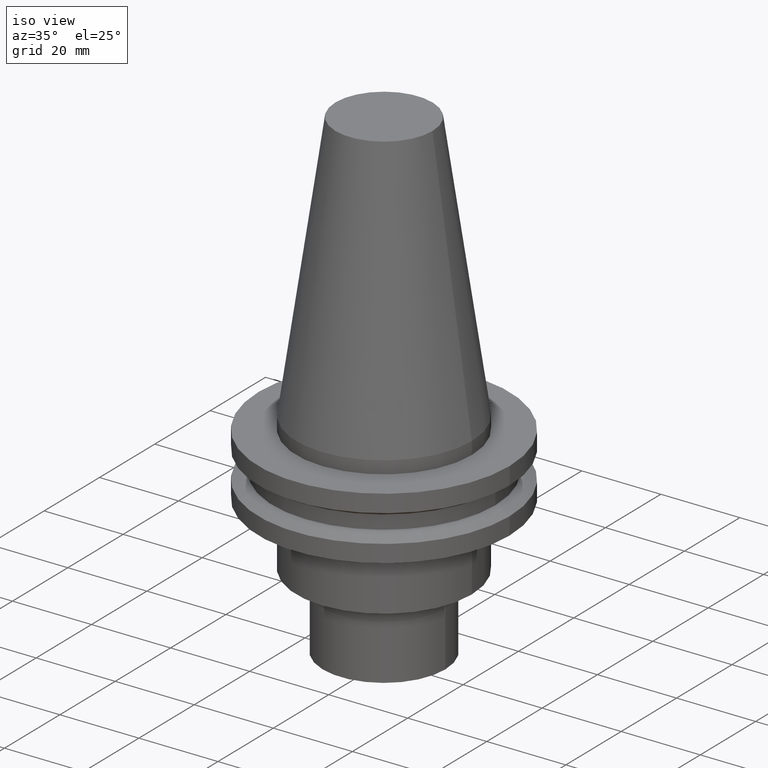
[diagram: clean part render]
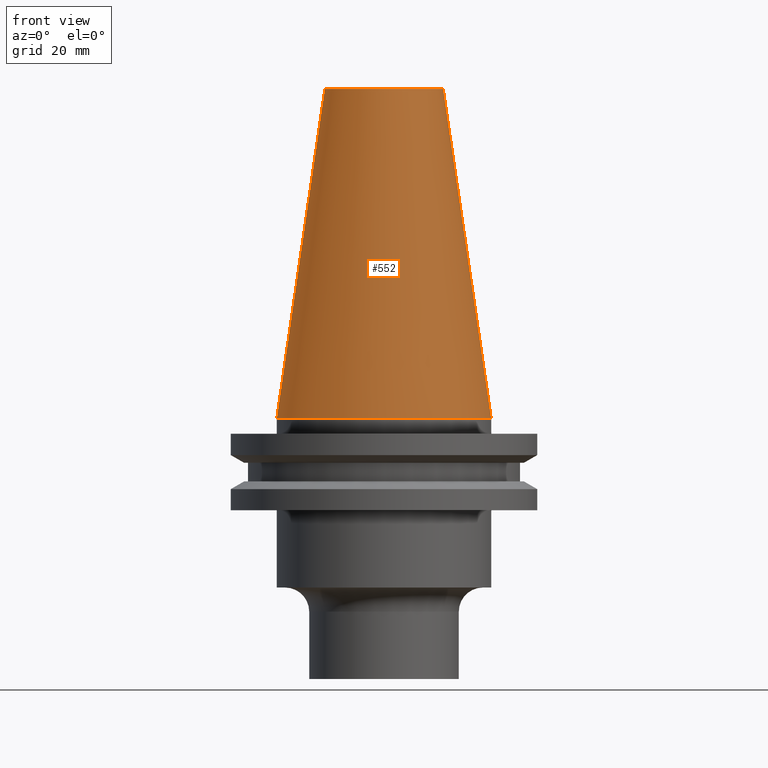
[diagram: tour spotlight — one face highlighted and labeled with its STEP entity id]
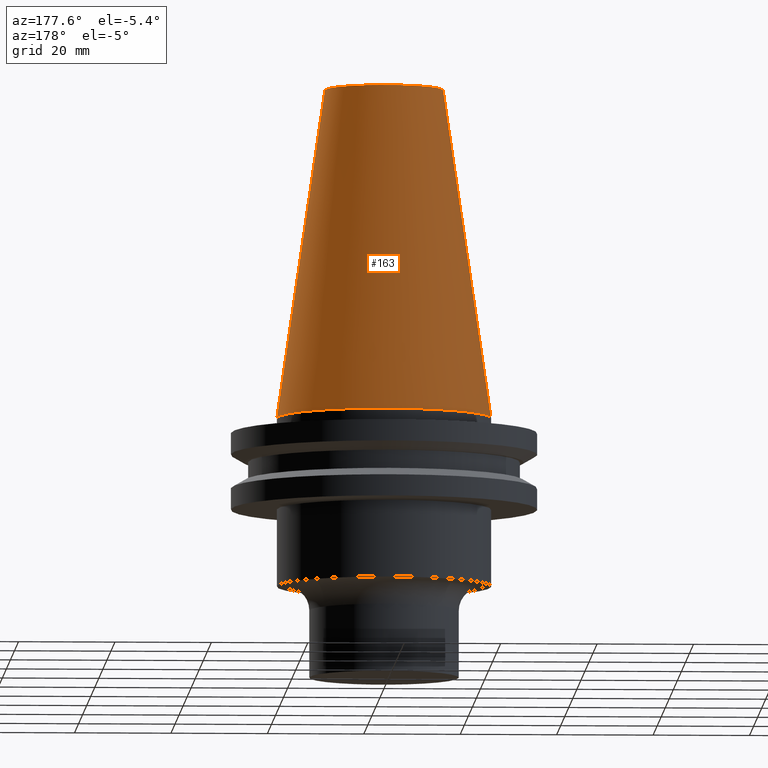
[diagram: tour spotlight — one face highlighted and labeled with its STEP entity id]
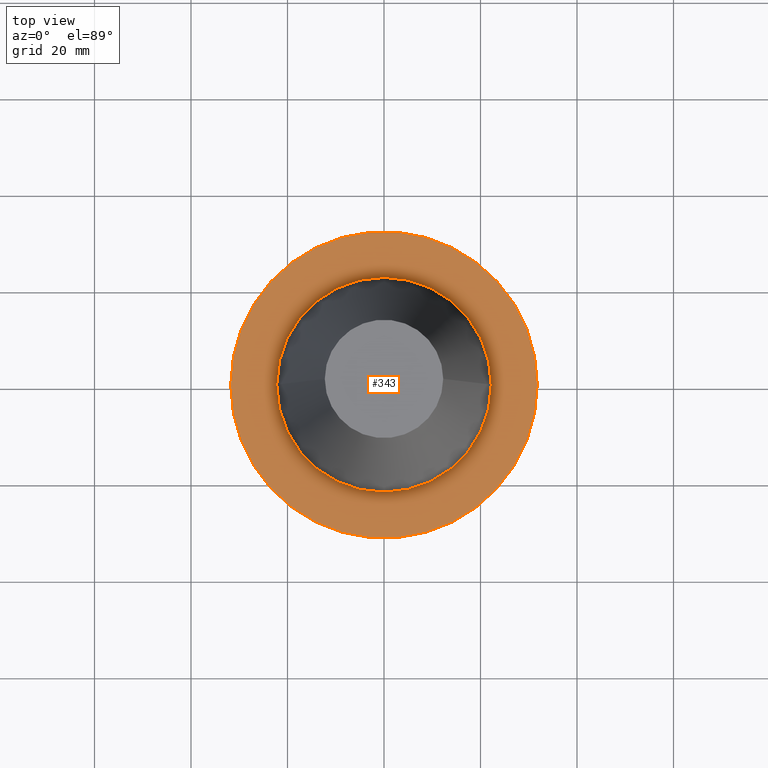
[diagram: tour spotlight — one face highlighted and labeled with its STEP entity id]
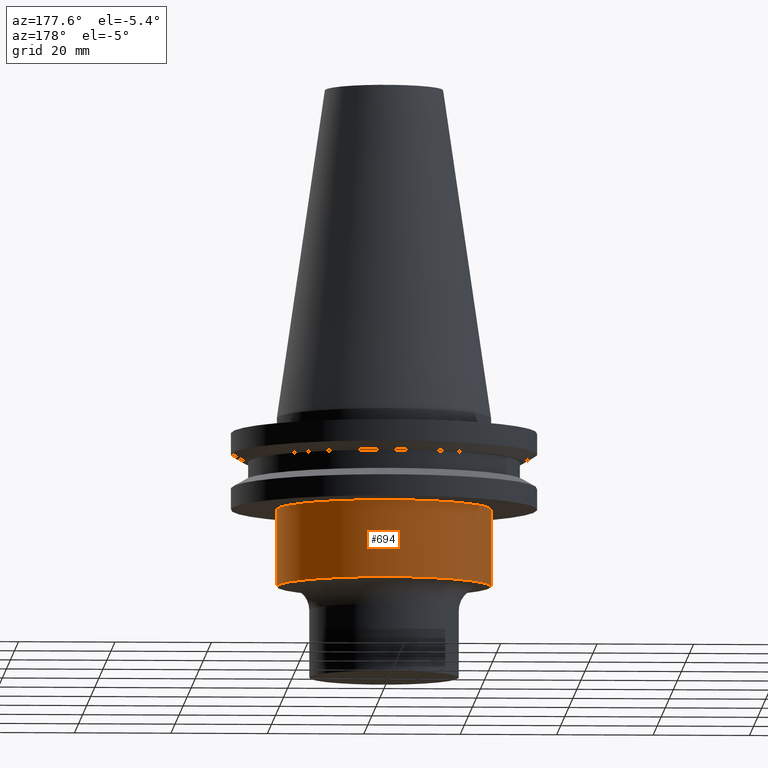
[diagram: tour spotlight — one face highlighted and labeled with its STEP entity id]
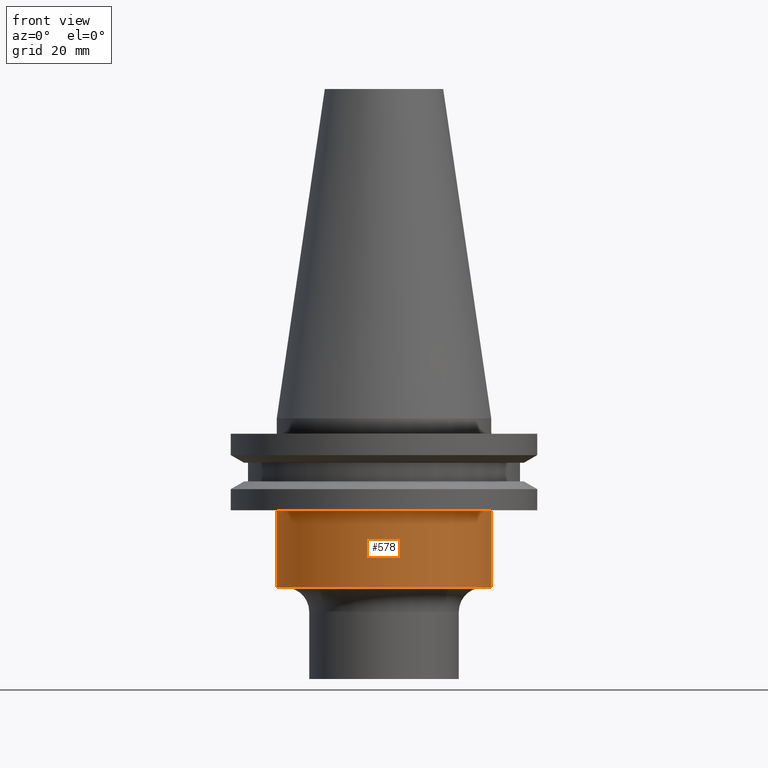
[diagram: tour spotlight — one face highlighted and labeled with its STEP entity id]
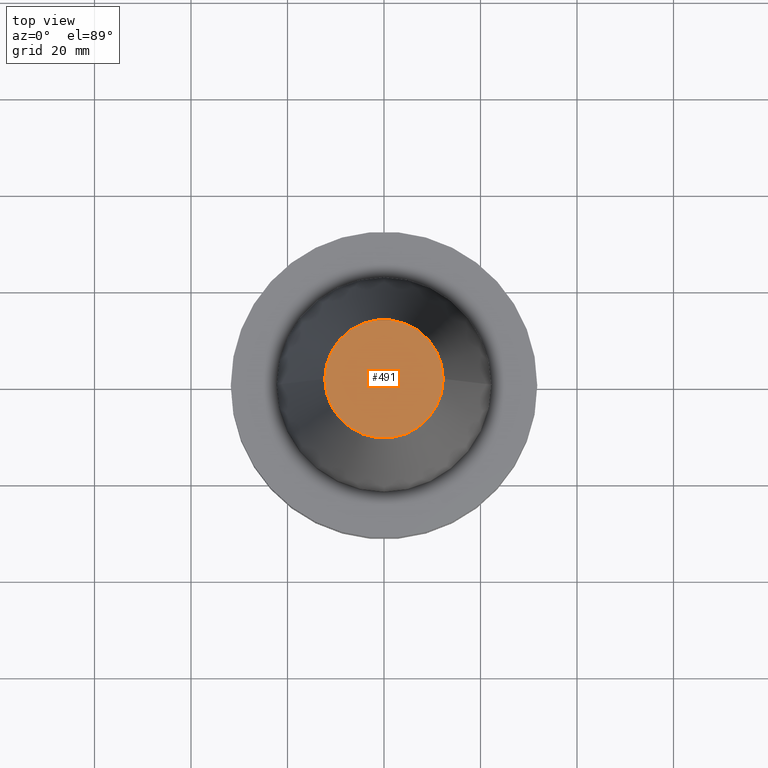
[diagram: tour spotlight — one face highlighted and labeled with its STEP entity id]
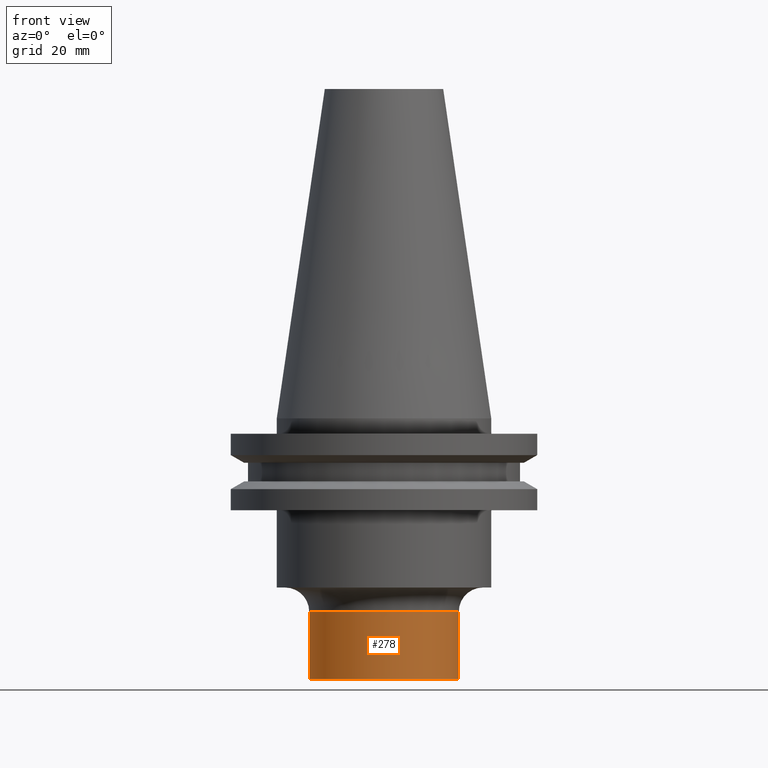
[diagram: tour spotlight — one face highlighted and labeled with its STEP entity id]
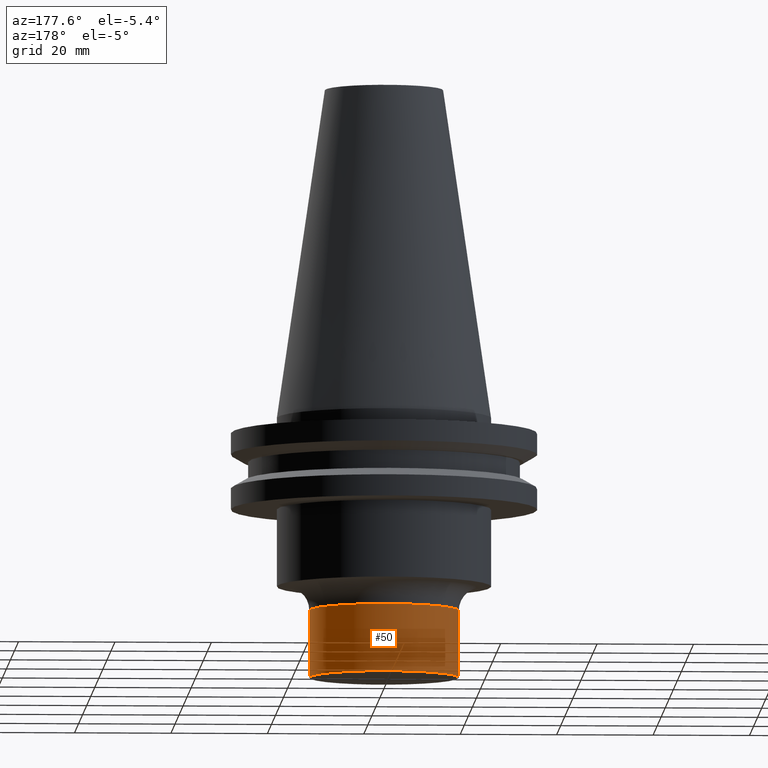
[diagram: tour spotlight — one face highlighted and labeled with its STEP entity id]
A machine part: a face-by-face anatomy tour. The part has 27 B-rep faces; the first image is the clean iso view, then the 8 largest visible faces are spotlighted one at a time (largest first), each with its STEP entity span.

Face 1 — front view, entity #552. In plain terms, the highlighted conical surface has half-angle 8.297 deg.
Definition (entity closure, byte-faithful):
#3 = CARTESIAN_POINT ( 'NONE',  ( 22.22500000000000142, 2.721777511104992849E-15, 0.000000000000000000 ) ) ;
#5 = VECTOR ( 'NONE', #271, 999.9999999999998863 ) ;
#72 = DIRECTION ( 'NONE',  ( -0.000000000000000000, -0.000000000000000000, 1.000000000000000000 ) ) ;
#78 = CARTESIAN_POINT ( 'NONE',  ( 0.000000000000000000, 0.000000000000000000, 0.000000000000000000 ) ) ;
#86 = DIRECTION ( 'NONE',  ( 0.1443082272672999711, 1.767266086135276757E-17, -0.9895327864921755756 ) ) ;
#126 = EDGE_CURVE ( 'NONE', #129, #236, #276, .T. ) ;
#129 = VERTEX_POINT ( 'NONE', #392 ) ;
#132 = VERTEX_POINT ( 'NONE', #340 ) ;
#145 = LINE ( 'NONE', #327, #5 ) ;
#154 = CONICAL_SURFACE ( 'NONE', #205, 22.22500000000000142, 0.1448138465474119174 ) ;
#205 = AXIS2_PLACEMENT_3D ( 'NONE', #78, #498, #736 ) ;
#215 = CARTESIAN_POINT ( 'NONE',  ( 12.27178102086201150, 2.112318622904291439E-15, 68.25000000000000000 ) ) ;
#221 = EDGE_CURVE ( 'NONE', #132, #682, #302, .T. ) ;
#236 = VERTEX_POINT ( 'NONE', #3 ) ;
#247 = ORIENTED_EDGE ( 'NONE', *, *, #126, .T. ) ;
#271 = DIRECTION ( 'NONE',  ( -0.1443082272672999711, 0.000000000000000000, -0.9895327864921755756 ) ) ;
#276 = CIRCLE ( 'NONE', #374, 22.22500000000000142 ) ;
#302 = CIRCLE ( 'NONE', #621, 12.27178102086201150 ) ;
#325 = ORIENTED_EDGE ( 'NONE', *, *, #499, .T. ) ;
#327 = CARTESIAN_POINT ( 'NONE',  ( -22.22500000000000142, 0.000000000000000000, 0.000000000000000000 ) ) ;
#337 = VECTOR ( 'NONE', #86, 999.9999999999998863 ) ;
#340 = CARTESIAN_POINT ( 'NONE',  ( -12.27178102086201150, 0.000000000000000000, 68.25000000000000000 ) ) ;
#374 = AXIS2_PLACEMENT_3D ( 'NONE', #771, #408, #519 ) ;
#392 = CARTESIAN_POINT ( 'NONE',  ( -22.22500000000000142, 0.000000000000000000, 0.000000000000000000 ) ) ;
#408 = DIRECTION ( 'NONE',  ( -0.000000000000000000, -0.000000000000000000, 1.000000000000000000 ) ) ;
#476 = EDGE_CURVE ( 'NONE', #682, #236, #496, .T. ) ;
#496 = LINE ( 'NONE', #627, #337 ) ;
#498 = DIRECTION ( 'NONE',  ( 0.000000000000000000, 0.000000000000000000, -1.000000000000000000 ) ) ;
#499 = EDGE_CURVE ( 'NONE', #132, #129, #145, .T. ) ;
#519 = DIRECTION ( 'NONE',  ( 1.000000000000000000, 0.000000000000000000, 0.000000000000000000 ) ) ;
#550 = DIRECTION ( 'NONE',  ( 1.000000000000000000, 0.000000000000000000, 0.000000000000000000 ) ) ;
#552 = ADVANCED_FACE ( 'NONE', ( #620 ), #154, .T. ) ;
#593 = EDGE_LOOP ( 'NONE', ( #725, #768, #325, #247 ) ) ;
#600 = CARTESIAN_POINT ( 'NONE',  ( 0.000000000000000000, 0.000000000000000000, 68.25000000000000000 ) ) ;
#620 = FACE_OUTER_BOUND ( 'NONE', #593, .T. ) ;
#621 = AXIS2_PLACEMENT_3D ( 'NONE', #600, #72, #550 ) ;
#627 = CARTESIAN_POINT ( 'NONE',  ( 22.22500000000000142, 2.721777511104992849E-15, 0.000000000000000000 ) ) ;
#682 = VERTEX_POINT ( 'NONE', #215 ) ;
#725 = ORIENTED_EDGE ( 'NONE', *, *, #476, .F. ) ;
#736 = DIRECTION ( 'NONE',  ( -1.000000000000000000, 0.000000000000000000, 0.000000000000000000 ) ) ;
#768 = ORIENTED_EDGE ( 'NONE', *, *, #221, .F. ) ;
#771 = CARTESIAN_POINT ( 'NONE',  ( 0.000000000000000000, 0.000000000000000000, 0.000000000000000000 ) ) ;

Face 2 — auxiliary view, entity #163. In plain terms, the highlighted conical surface has half-angle 8.297 deg.
Definition (entity closure, byte-faithful):
#3 = CARTESIAN_POINT ( 'NONE',  ( 22.22500000000000142, 2.721777511104992849E-15, 0.000000000000000000 ) ) ;
#5 = VECTOR ( 'NONE', #271, 999.9999999999998863 ) ;
#41 = CARTESIAN_POINT ( 'NONE',  ( 0.000000000000000000, 0.000000000000000000, 0.000000000000000000 ) ) ;
#63 = AXIS2_PLACEMENT_3D ( 'NONE', #659, #548, #490 ) ;
#86 = DIRECTION ( 'NONE',  ( 0.1443082272672999711, 1.767266086135276757E-17, -0.9895327864921755756 ) ) ;
#87 = CIRCLE ( 'NONE', #63, 22.22500000000000142 ) ;
#105 = DIRECTION ( 'NONE',  ( 0.000000000000000000, 0.000000000000000000, -1.000000000000000000 ) ) ;
#129 = VERTEX_POINT ( 'NONE', #392 ) ;
#132 = VERTEX_POINT ( 'NONE', #340 ) ;
#145 = LINE ( 'NONE', #327, #5 ) ;
#163 = ADVANCED_FACE ( 'NONE', ( #395 ), #277, .T. ) ;
#174 = ORIENTED_EDGE ( 'NONE', *, *, #499, .F. ) ;
#185 = ORIENTED_EDGE ( 'NONE', *, *, #476, .T. ) ;
#212 = DIRECTION ( 'NONE',  ( -0.000000000000000000, -0.000000000000000000, 1.000000000000000000 ) ) ;
#215 = CARTESIAN_POINT ( 'NONE',  ( 12.27178102086201150, 2.112318622904291439E-15, 68.25000000000000000 ) ) ;
#236 = VERTEX_POINT ( 'NONE', #3 ) ;
#271 = DIRECTION ( 'NONE',  ( -0.1443082272672999711, 0.000000000000000000, -0.9895327864921755756 ) ) ;
#277 = CONICAL_SURFACE ( 'NONE', #376, 22.22500000000000142, 0.1448138465474119174 ) ;
#318 = CARTESIAN_POINT ( 'NONE',  ( 0.000000000000000000, 0.000000000000000000, 68.25000000000000000 ) ) ;
#327 = CARTESIAN_POINT ( 'NONE',  ( -22.22500000000000142, 0.000000000000000000, 0.000000000000000000 ) ) ;
#337 = VECTOR ( 'NONE', #86, 999.9999999999998863 ) ;
#340 = CARTESIAN_POINT ( 'NONE',  ( -12.27178102086201150, 0.000000000000000000, 68.25000000000000000 ) ) ;
#344 = DIRECTION ( 'NONE',  ( -1.000000000000000000, 0.000000000000000000, 0.000000000000000000 ) ) ;
#362 = CIRCLE ( 'NONE', #554, 12.27178102086201150 ) ;
#376 = AXIS2_PLACEMENT_3D ( 'NONE', #41, #105, #344 ) ;
#392 = CARTESIAN_POINT ( 'NONE',  ( -22.22500000000000142, 0.000000000000000000, 0.000000000000000000 ) ) ;
#395 = FACE_OUTER_BOUND ( 'NONE', #455, .T. ) ;
#409 = EDGE_CURVE ( 'NONE', #682, #132, #362, .T. ) ;
#455 = EDGE_LOOP ( 'NONE', ( #534, #185, #544, #174 ) ) ;
#476 = EDGE_CURVE ( 'NONE', #682, #236, #496, .T. ) ;
#490 = DIRECTION ( 'NONE',  ( 1.000000000000000000, 0.000000000000000000, 0.000000000000000000 ) ) ;
#496 = LINE ( 'NONE', #627, #337 ) ;
#499 = EDGE_CURVE ( 'NONE', #132, #129, #145, .T. ) ;
#534 = ORIENTED_EDGE ( 'NONE', *, *, #409, .F. ) ;
#544 = ORIENTED_EDGE ( 'NONE', *, *, #708, .T. ) ;
#548 = DIRECTION ( 'NONE',  ( -0.000000000000000000, -0.000000000000000000, 1.000000000000000000 ) ) ;
#554 = AXIS2_PLACEMENT_3D ( 'NONE', #318, #212, #573 ) ;
#573 = DIRECTION ( 'NONE',  ( 1.000000000000000000, 0.000000000000000000, 0.000000000000000000 ) ) ;
#627 = CARTESIAN_POINT ( 'NONE',  ( 22.22500000000000142, 2.721777511104992849E-15, 0.000000000000000000 ) ) ;
#659 = CARTESIAN_POINT ( 'NONE',  ( 0.000000000000000000, 0.000000000000000000, 0.000000000000000000 ) ) ;
#682 = VERTEX_POINT ( 'NONE', #215 ) ;
#708 = EDGE_CURVE ( 'NONE', #236, #129, #87, .T. ) ;

Face 3 — top view, entity #343. In plain terms, the highlighted planar face has unit normal (0, 0, -1).
Definition (entity closure, byte-faithful):
#7 = VERTEX_POINT ( 'NONE', #626 ) ;
#14 = AXIS2_PLACEMENT_3D ( 'NONE', #509, #737, #748 ) ;
#17 = CARTESIAN_POINT ( 'NONE',  ( 0.000000000000000000, 0.000000000000000000, -3.174999999999997158 ) ) ;
#45 = EDGE_CURVE ( 'NONE', #7, #715, #228, .T. ) ;
#53 = VERTEX_POINT ( 'NONE', #235 ) ;
#81 = CARTESIAN_POINT ( 'NONE',  ( 0.000000000000000000, 0.000000000000000000, -3.174999999999997158 ) ) ;
#119 = ORIENTED_EDGE ( 'NONE', *, *, #332, .T. ) ;
#121 = DIRECTION ( 'NONE',  ( 1.000000000000000000, 0.000000000000000000, 0.000000000000000000 ) ) ;
#187 = CARTESIAN_POINT ( 'NONE',  ( 0.000000000000000000, 31.75000000000000000, -3.174999999999993605 ) ) ;
#191 = CARTESIAN_POINT ( 'NONE',  ( 22.22500000000000142, 0.000000000000000000, -3.174999999999997158 ) ) ;
#198 = DIRECTION ( 'NONE',  ( -0.000000000000000000, -0.000000000000000000, 1.000000000000000000 ) ) ;
#206 = DIRECTION ( 'NONE',  ( 1.000000000000000000, 0.000000000000000000, 0.000000000000000000 ) ) ;
#213 = VERTEX_POINT ( 'NONE', #537 ) ;
#228 = CIRCLE ( 'NONE', #14, 22.22500000000000142 ) ;
#230 = AXIS2_PLACEMENT_3D ( 'NONE', #17, #747, #268 ) ;
#235 = CARTESIAN_POINT ( 'NONE',  ( -31.75000000000000000, 3.888253587292846476E-15, -3.174999999999997158 ) ) ;
#240 = CARTESIAN_POINT ( 'NONE',  ( 0.000000000000000000, 0.000000000000000000, -3.174999999999997158 ) ) ;
#249 = PLANE ( 'NONE',  #678 ) ;
#254 = ORIENTED_EDGE ( 'NONE', *, *, #360, .T. ) ;
#255 = CIRCLE ( 'NONE', #457, 31.75000000000000000 ) ;
#258 = EDGE_LOOP ( 'NONE', ( #523, #449 ) ) ;
#268 = DIRECTION ( 'NONE',  ( 1.000000000000000000, 0.000000000000000000, 0.000000000000000000 ) ) ;
#332 = EDGE_CURVE ( 'NONE', #53, #213, #527, .T. ) ;
#343 = ADVANCED_FACE ( 'NONE', ( #487, #419 ), #249, .F. ) ;
#360 = EDGE_CURVE ( 'NONE', #213, #53, #255, .T. ) ;
#397 = EDGE_CURVE ( 'NONE', #715, #7, #582, .T. ) ;
#419 = FACE_OUTER_BOUND ( 'NONE', #450, .T. ) ;
#449 = ORIENTED_EDGE ( 'NONE', *, *, #45, .F. ) ;
#450 = EDGE_LOOP ( 'NONE', ( #254, #119 ) ) ;
#457 = AXIS2_PLACEMENT_3D ( 'NONE', #81, #198, #206 ) ;
#487 = FACE_BOUND ( 'NONE', #258, .T. ) ;
#492 = DIRECTION ( 'NONE',  ( 0.000000000000000000, 0.000000000000000000, -1.000000000000000000 ) ) ;
#509 = CARTESIAN_POINT ( 'NONE',  ( 0.000000000000000000, 0.000000000000000000, -3.174999999999997158 ) ) ;
#523 = ORIENTED_EDGE ( 'NONE', *, *, #397, .F. ) ;
#527 = CIRCLE ( 'NONE', #606, 31.75000000000000000 ) ;
#537 = CARTESIAN_POINT ( 'NONE',  ( 31.75000000000000000, 0.000000000000000000, -3.174999999999997158 ) ) ;
#582 = CIRCLE ( 'NONE', #230, 22.22500000000000142 ) ;
#606 = AXIS2_PLACEMENT_3D ( 'NONE', #240, #664, #121 ) ;
#626 = CARTESIAN_POINT ( 'NONE',  ( -22.22500000000000142, 2.721777511104992849E-15, -3.174999999999997158 ) ) ;
#664 = DIRECTION ( 'NONE',  ( -0.000000000000000000, -0.000000000000000000, 1.000000000000000000 ) ) ;
#668 = DIRECTION ( 'NONE',  ( -1.000000000000000000, 0.000000000000000000, -0.000000000000000000 ) ) ;
#678 = AXIS2_PLACEMENT_3D ( 'NONE', #187, #492, #668 ) ;
#715 = VERTEX_POINT ( 'NONE', #191 ) ;
#737 = DIRECTION ( 'NONE',  ( -0.000000000000000000, -0.000000000000000000, 1.000000000000000000 ) ) ;
#747 = DIRECTION ( 'NONE',  ( -0.000000000000000000, -0.000000000000000000, 1.000000000000000000 ) ) ;
#748 = DIRECTION ( 'NONE',  ( 1.000000000000000000, 0.000000000000000000, 0.000000000000000000 ) ) ;

Face 4 — auxiliary view, entity #694. In plain terms, the highlighted cylindrical surface (partial cylindrical patch) has radius 22.225 mm, axis along (-0, -0, 1).
Definition (entity closure, byte-faithful):
#24 = EDGE_CURVE ( 'NONE', #658, #106, #265, .T. ) ;
#44 = CARTESIAN_POINT ( 'NONE',  ( 0.000000000000000000, 0.000000000000000000, -35.04999999999999716 ) ) ;
#47 = CARTESIAN_POINT ( 'NONE',  ( 22.22500000000000142, 0.000000000000000000, -19.04999999999999716 ) ) ;
#52 = LINE ( 'NONE', #580, #619 ) ;
#80 = EDGE_CURVE ( 'NONE', #93, #99, #568, .T. ) ;
#93 = VERTEX_POINT ( 'NONE', #597 ) ;
#99 = VERTEX_POINT ( 'NONE', #641 ) ;
#102 = DIRECTION ( 'NONE',  ( -0.000000000000000000, -0.000000000000000000, 1.000000000000000000 ) ) ;
#106 = VERTEX_POINT ( 'NONE', #279 ) ;
#110 = EDGE_CURVE ( 'NONE', #99, #106, #52, .T. ) ;
#123 = ORIENTED_EDGE ( 'NONE', *, *, #80, .T. ) ;
#138 = VECTOR ( 'NONE', #142, 1000.000000000000000 ) ;
#142 = DIRECTION ( 'NONE',  ( -0.000000000000000000, -0.000000000000000000, 1.000000000000000000 ) ) ;
#143 = ORIENTED_EDGE ( 'NONE', *, *, #367, .F. ) ;
#148 = LINE ( 'NONE', #629, #138 ) ;
#157 = FACE_OUTER_BOUND ( 'NONE', #732, .T. ) ;
#209 = DIRECTION ( 'NONE',  ( -0.000000000000000000, -0.000000000000000000, 1.000000000000000000 ) ) ;
#265 = CIRCLE ( 'NONE', #456, 22.22500000000000142 ) ;
#279 = CARTESIAN_POINT ( 'NONE',  ( -22.22500000000000142, 2.721777511104992849E-15, -19.04999999999999716 ) ) ;
#352 = ORIENTED_EDGE ( 'NONE', *, *, #110, .T. ) ;
#367 = EDGE_CURVE ( 'NONE', #93, #658, #148, .T. ) ;
#385 = DIRECTION ( 'NONE',  ( 1.000000000000000000, 0.000000000000000000, 0.000000000000000000 ) ) ;
#391 = CARTESIAN_POINT ( 'NONE',  ( 0.000000000000000000, 0.000000000000000000, 68.25000000000000000 ) ) ;
#399 = CYLINDRICAL_SURFACE ( 'NONE', #481, 22.22500000000000142 ) ;
#456 = AXIS2_PLACEMENT_3D ( 'NONE', #686, #209, #385 ) ;
#460 = DIRECTION ( 'NONE',  ( 1.000000000000000000, 0.000000000000000000, 0.000000000000000000 ) ) ;
#481 = AXIS2_PLACEMENT_3D ( 'NONE', #391, #636, #588 ) ;
#568 = CIRCLE ( 'NONE', #594, 22.22500000000000142 ) ;
#580 = CARTESIAN_POINT ( 'NONE',  ( -22.22500000000000142, 2.721777511104992849E-15, 68.25000000000000000 ) ) ;
#588 = DIRECTION ( 'NONE',  ( 1.000000000000000000, 0.000000000000000000, 0.000000000000000000 ) ) ;
#594 = AXIS2_PLACEMENT_3D ( 'NONE', #44, #755, #460 ) ;
#597 = CARTESIAN_POINT ( 'NONE',  ( 22.22500000000000142, 0.000000000000000000, -35.04999999999999716 ) ) ;
#617 = ORIENTED_EDGE ( 'NONE', *, *, #24, .F. ) ;
#619 = VECTOR ( 'NONE', #102, 1000.000000000000000 ) ;
#629 = CARTESIAN_POINT ( 'NONE',  ( 22.22500000000000142, 0.000000000000000000, 68.25000000000000000 ) ) ;
#636 = DIRECTION ( 'NONE',  ( -0.000000000000000000, -0.000000000000000000, 1.000000000000000000 ) ) ;
#641 = CARTESIAN_POINT ( 'NONE',  ( -22.22500000000000142, 2.721777511104992849E-15, -35.04999999999999716 ) ) ;
#658 = VERTEX_POINT ( 'NONE', #47 ) ;
#686 = CARTESIAN_POINT ( 'NONE',  ( 0.000000000000000000, 0.000000000000000000, -19.04999999999999716 ) ) ;
#694 = ADVANCED_FACE ( 'NONE', ( #157 ), #399, .T. ) ;
#732 = EDGE_LOOP ( 'NONE', ( #123, #352, #617, #143 ) ) ;
#755 = DIRECTION ( 'NONE',  ( -0.000000000000000000, -0.000000000000000000, 1.000000000000000000 ) ) ;

Face 5 — front view, entity #578. In plain terms, the highlighted cylindrical surface (partial cylindrical patch) has radius 22.225 mm, axis along (-0, -0, 1).
Definition (entity closure, byte-faithful):
#28 = AXIS2_PLACEMENT_3D ( 'NONE', #330, #43, #342 ) ;
#43 = DIRECTION ( 'NONE',  ( -0.000000000000000000, -0.000000000000000000, 1.000000000000000000 ) ) ;
#47 = CARTESIAN_POINT ( 'NONE',  ( 22.22500000000000142, 0.000000000000000000, -19.04999999999999716 ) ) ;
#52 = LINE ( 'NONE', #580, #619 ) ;
#69 = EDGE_CURVE ( 'NONE', #99, #93, #241, .T. ) ;
#74 = AXIS2_PLACEMENT_3D ( 'NONE', #167, #530, #650 ) ;
#93 = VERTEX_POINT ( 'NONE', #597 ) ;
#99 = VERTEX_POINT ( 'NONE', #641 ) ;
#102 = DIRECTION ( 'NONE',  ( -0.000000000000000000, -0.000000000000000000, 1.000000000000000000 ) ) ;
#106 = VERTEX_POINT ( 'NONE', #279 ) ;
#110 = EDGE_CURVE ( 'NONE', #99, #106, #52, .T. ) ;
#138 = VECTOR ( 'NONE', #142, 1000.000000000000000 ) ;
#142 = DIRECTION ( 'NONE',  ( -0.000000000000000000, -0.000000000000000000, 1.000000000000000000 ) ) ;
#148 = LINE ( 'NONE', #629, #138 ) ;
#164 = CYLINDRICAL_SURFACE ( 'NONE', #28, 22.22500000000000142 ) ;
#167 = CARTESIAN_POINT ( 'NONE',  ( 0.000000000000000000, 0.000000000000000000, -35.04999999999999716 ) ) ;
#229 = FACE_OUTER_BOUND ( 'NONE', #647, .T. ) ;
#241 = CIRCLE ( 'NONE', #74, 22.22500000000000142 ) ;
#274 = DIRECTION ( 'NONE',  ( 1.000000000000000000, 0.000000000000000000, 0.000000000000000000 ) ) ;
#279 = CARTESIAN_POINT ( 'NONE',  ( -22.22500000000000142, 2.721777511104992849E-15, -19.04999999999999716 ) ) ;
#330 = CARTESIAN_POINT ( 'NONE',  ( 0.000000000000000000, 0.000000000000000000, 68.25000000000000000 ) ) ;
#341 = ORIENTED_EDGE ( 'NONE', *, *, #584, .F. ) ;
#342 = DIRECTION ( 'NONE',  ( 1.000000000000000000, 0.000000000000000000, 0.000000000000000000 ) ) ;
#363 = AXIS2_PLACEMENT_3D ( 'NONE', #645, #464, #274 ) ;
#367 = EDGE_CURVE ( 'NONE', #93, #658, #148, .T. ) ;
#380 = ORIENTED_EDGE ( 'NONE', *, *, #69, .T. ) ;
#387 = ORIENTED_EDGE ( 'NONE', *, *, #110, .F. ) ;
#464 = DIRECTION ( 'NONE',  ( -0.000000000000000000, -0.000000000000000000, 1.000000000000000000 ) ) ;
#466 = ORIENTED_EDGE ( 'NONE', *, *, #367, .T. ) ;
#530 = DIRECTION ( 'NONE',  ( -0.000000000000000000, -0.000000000000000000, 1.000000000000000000 ) ) ;
#578 = ADVANCED_FACE ( 'NONE', ( #229 ), #164, .T. ) ;
#580 = CARTESIAN_POINT ( 'NONE',  ( -22.22500000000000142, 2.721777511104992849E-15, 68.25000000000000000 ) ) ;
#584 = EDGE_CURVE ( 'NONE', #106, #658, #743, .T. ) ;
#597 = CARTESIAN_POINT ( 'NONE',  ( 22.22500000000000142, 0.000000000000000000, -35.04999999999999716 ) ) ;
#619 = VECTOR ( 'NONE', #102, 1000.000000000000000 ) ;
#629 = CARTESIAN_POINT ( 'NONE',  ( 22.22500000000000142, 0.000000000000000000, 68.25000000000000000 ) ) ;
#641 = CARTESIAN_POINT ( 'NONE',  ( -22.22500000000000142, 2.721777511104992849E-15, -35.04999999999999716 ) ) ;
#645 = CARTESIAN_POINT ( 'NONE',  ( 0.000000000000000000, 0.000000000000000000, -19.04999999999999716 ) ) ;
#647 = EDGE_LOOP ( 'NONE', ( #387, #380, #466, #341 ) ) ;
#650 = DIRECTION ( 'NONE',  ( 1.000000000000000000, 0.000000000000000000, 0.000000000000000000 ) ) ;
#658 = VERTEX_POINT ( 'NONE', #47 ) ;
#743 = CIRCLE ( 'NONE', #363, 22.22500000000000142 ) ;

Face 6 — top view, entity #491. In plain terms, the highlighted planar face has unit normal (0, 0, -1).
Definition (entity closure, byte-faithful):
#19 = PLANE ( 'NONE',  #214 ) ;
#46 = ORIENTED_EDGE ( 'NONE', *, *, #409, .T. ) ;
#70 = ORIENTED_EDGE ( 'NONE', *, *, #221, .T. ) ;
#72 = DIRECTION ( 'NONE',  ( -0.000000000000000000, -0.000000000000000000, 1.000000000000000000 ) ) ;
#83 = FACE_OUTER_BOUND ( 'NONE', #574, .T. ) ;
#132 = VERTEX_POINT ( 'NONE', #340 ) ;
#153 = DIRECTION ( 'NONE',  ( -1.000000000000000000, 0.000000000000000000, -0.000000000000000000 ) ) ;
#212 = DIRECTION ( 'NONE',  ( -0.000000000000000000, -0.000000000000000000, 1.000000000000000000 ) ) ;
#214 = AXIS2_PLACEMENT_3D ( 'NONE', #742, #687, #153 ) ;
#215 = CARTESIAN_POINT ( 'NONE',  ( 12.27178102086201150, 2.112318622904291439E-15, 68.25000000000000000 ) ) ;
#221 = EDGE_CURVE ( 'NONE', #132, #682, #302, .T. ) ;
#302 = CIRCLE ( 'NONE', #621, 12.27178102086201150 ) ;
#318 = CARTESIAN_POINT ( 'NONE',  ( 0.000000000000000000, 0.000000000000000000, 68.25000000000000000 ) ) ;
#340 = CARTESIAN_POINT ( 'NONE',  ( -12.27178102086201150, 0.000000000000000000, 68.25000000000000000 ) ) ;
#362 = CIRCLE ( 'NONE', #554, 12.27178102086201150 ) ;
#409 = EDGE_CURVE ( 'NONE', #682, #132, #362, .T. ) ;
#491 = ADVANCED_FACE ( 'NONE', ( #83 ), #19, .F. ) ;
#550 = DIRECTION ( 'NONE',  ( 1.000000000000000000, 0.000000000000000000, 0.000000000000000000 ) ) ;
#554 = AXIS2_PLACEMENT_3D ( 'NONE', #318, #212, #573 ) ;
#573 = DIRECTION ( 'NONE',  ( 1.000000000000000000, 0.000000000000000000, 0.000000000000000000 ) ) ;
#574 = EDGE_LOOP ( 'NONE', ( #70, #46 ) ) ;
#600 = CARTESIAN_POINT ( 'NONE',  ( 0.000000000000000000, 0.000000000000000000, 68.25000000000000000 ) ) ;
#621 = AXIS2_PLACEMENT_3D ( 'NONE', #600, #72, #550 ) ;
#682 = VERTEX_POINT ( 'NONE', #215 ) ;
#687 = DIRECTION ( 'NONE',  ( 0.000000000000000000, 0.000000000000000000, -1.000000000000000000 ) ) ;
#742 = CARTESIAN_POINT ( 'NONE',  ( 0.000000000000000000, 12.27178102086201150, 68.25000000000000000 ) ) ;

Face 7 — front view, entity #278. In plain terms, the highlighted cylindrical surface (partial cylindrical patch) has radius 15.5 mm, axis along (-0, -0, 1).
Definition (entity closure, byte-faithful):
#27 = DIRECTION ( 'NONE',  ( 1.000000000000000000, 0.000000000000000000, 0.000000000000000000 ) ) ;
#31 = CARTESIAN_POINT ( 'NONE',  ( 0.000000000000000000, 0.000000000000000000, -40.04999999999999005 ) ) ;
#39 = CARTESIAN_POINT ( 'NONE',  ( -15.50000000000000000, 1.898202538678397557E-15, 0.000000000000000000 ) ) ;
#89 = DIRECTION ( 'NONE',  ( -0.000000000000000000, -0.000000000000000000, 1.000000000000000000 ) ) ;
#107 = DIRECTION ( 'NONE',  ( -0.000000000000000000, -0.000000000000000000, 1.000000000000000000 ) ) ;
#125 = VECTOR ( 'NONE', #107, 1000.000000000000000 ) ;
#127 = CYLINDRICAL_SURFACE ( 'NONE', #480, 15.50000000000000000 ) ;
#131 = CARTESIAN_POINT ( 'NONE',  ( 0.000000000000000000, 0.000000000000000000, 0.000000000000000000 ) ) ;
#149 = EDGE_LOOP ( 'NONE', ( #238, #308, #420, #264 ) ) ;
#166 = AXIS2_PLACEMENT_3D ( 'NONE', #656, #248, #353 ) ;
#170 = CARTESIAN_POINT ( 'NONE',  ( -15.50000000000000000, 1.898202538678397557E-15, -40.04999999999999005 ) ) ;
#199 = VERTEX_POINT ( 'NONE', #170 ) ;
#238 = ORIENTED_EDGE ( 'NONE', *, *, #683, .F. ) ;
#248 = DIRECTION ( 'NONE',  ( -0.000000000000000000, -0.000000000000000000, 1.000000000000000000 ) ) ;
#264 = ORIENTED_EDGE ( 'NONE', *, *, #467, .F. ) ;
#278 = ADVANCED_FACE ( 'NONE', ( #546 ), #127, .T. ) ;
#308 = ORIENTED_EDGE ( 'NONE', *, *, #719, .T. ) ;
#310 = DIRECTION ( 'NONE',  ( -0.000000000000000000, -0.000000000000000000, 1.000000000000000000 ) ) ;
#353 = DIRECTION ( 'NONE',  ( 1.000000000000000000, 0.000000000000000000, 0.000000000000000000 ) ) ;
#405 = VERTEX_POINT ( 'NONE', #681 ) ;
#420 = ORIENTED_EDGE ( 'NONE', *, *, #738, .T. ) ;
#429 = CIRCLE ( 'NONE', #516, 15.50000000000000000 ) ;
#467 = EDGE_CURVE ( 'NONE', #199, #565, #429, .T. ) ;
#479 = CARTESIAN_POINT ( 'NONE',  ( 15.50000000000000000, 0.000000000000000000, 0.000000000000000000 ) ) ;
#480 = AXIS2_PLACEMENT_3D ( 'NONE', #131, #310, #660 ) ;
#486 = LINE ( 'NONE', #479, #125 ) ;
#516 = AXIS2_PLACEMENT_3D ( 'NONE', #31, #563, #27 ) ;
#521 = CARTESIAN_POINT ( 'NONE',  ( 15.50000000000000000, 0.000000000000000000, -40.04999999999999005 ) ) ;
#546 = FACE_OUTER_BOUND ( 'NONE', #149, .T. ) ;
#563 = DIRECTION ( 'NONE',  ( -0.000000000000000000, -0.000000000000000000, 1.000000000000000000 ) ) ;
#565 = VERTEX_POINT ( 'NONE', #521 ) ;
#585 = LINE ( 'NONE', #39, #756 ) ;
#640 = CARTESIAN_POINT ( 'NONE',  ( 15.49999999999999822, 0.000000000000000000, -53.99999999999999289 ) ) ;
#644 = CIRCLE ( 'NONE', #166, 15.49999999999999822 ) ;
#656 = CARTESIAN_POINT ( 'NONE',  ( 0.000000000000000000, 0.000000000000000000, -53.99999999999999289 ) ) ;
#660 = DIRECTION ( 'NONE',  ( 1.000000000000000000, 0.000000000000000000, 0.000000000000000000 ) ) ;
#672 = VERTEX_POINT ( 'NONE', #640 ) ;
#681 = CARTESIAN_POINT ( 'NONE',  ( -15.49999999999999822, 1.898202538678397163E-15, -53.99999999999999289 ) ) ;
#683 = EDGE_CURVE ( 'NONE', #405, #199, #585, .T. ) ;
#719 = EDGE_CURVE ( 'NONE', #405, #672, #644, .T. ) ;
#738 = EDGE_CURVE ( 'NONE', #672, #565, #486, .T. ) ;
#756 = VECTOR ( 'NONE', #89, 1000.000000000000000 ) ;

Face 8 — auxiliary view, entity #50. In plain terms, the highlighted cylindrical surface (partial cylindrical patch) has radius 15.5 mm, axis along (-0, -0, 1).
Definition (entity closure, byte-faithful):
#39 = CARTESIAN_POINT ( 'NONE',  ( -15.50000000000000000, 1.898202538678397557E-15, 0.000000000000000000 ) ) ;
#50 = ADVANCED_FACE ( 'NONE', ( #453 ), #690, .T. ) ;
#89 = DIRECTION ( 'NONE',  ( -0.000000000000000000, -0.000000000000000000, 1.000000000000000000 ) ) ;
#94 = DIRECTION ( 'NONE',  ( -0.000000000000000000, -0.000000000000000000, 1.000000000000000000 ) ) ;
#100 = EDGE_CURVE ( 'NONE', #672, #405, #177, .T. ) ;
#107 = DIRECTION ( 'NONE',  ( -0.000000000000000000, -0.000000000000000000, 1.000000000000000000 ) ) ;
#125 = VECTOR ( 'NONE', #107, 1000.000000000000000 ) ;
#140 = AXIS2_PLACEMENT_3D ( 'NONE', #333, #94, #757 ) ;
#170 = CARTESIAN_POINT ( 'NONE',  ( -15.50000000000000000, 1.898202538678397557E-15, -40.04999999999999005 ) ) ;
#177 = CIRCLE ( 'NONE', #313, 15.49999999999999822 ) ;
#199 = VERTEX_POINT ( 'NONE', #170 ) ;
#200 = AXIS2_PLACEMENT_3D ( 'NONE', #390, #634, #465 ) ;
#218 = DIRECTION ( 'NONE',  ( 1.000000000000000000, 0.000000000000000000, 0.000000000000000000 ) ) ;
#231 = CIRCLE ( 'NONE', #140, 15.50000000000000000 ) ;
#285 = CARTESIAN_POINT ( 'NONE',  ( 0.000000000000000000, 0.000000000000000000, -53.99999999999999289 ) ) ;
#313 = AXIS2_PLACEMENT_3D ( 'NONE', #285, #710, #218 ) ;
#323 = ORIENTED_EDGE ( 'NONE', *, *, #683, .T. ) ;
#333 = CARTESIAN_POINT ( 'NONE',  ( 0.000000000000000000, 0.000000000000000000, -40.04999999999999005 ) ) ;
#390 = CARTESIAN_POINT ( 'NONE',  ( 0.000000000000000000, 0.000000000000000000, 0.000000000000000000 ) ) ;
#405 = VERTEX_POINT ( 'NONE', #681 ) ;
#453 = FACE_OUTER_BOUND ( 'NONE', #720, .T. ) ;
#465 = DIRECTION ( 'NONE',  ( 1.000000000000000000, 0.000000000000000000, 0.000000000000000000 ) ) ;
#479 = CARTESIAN_POINT ( 'NONE',  ( 15.50000000000000000, 0.000000000000000000, 0.000000000000000000 ) ) ;
#486 = LINE ( 'NONE', #479, #125 ) ;
#521 = CARTESIAN_POINT ( 'NONE',  ( 15.50000000000000000, 0.000000000000000000, -40.04999999999999005 ) ) ;
#551 = ORIENTED_EDGE ( 'NONE', *, *, #100, .T. ) ;
#565 = VERTEX_POINT ( 'NONE', #521 ) ;
#575 = EDGE_CURVE ( 'NONE', #565, #199, #231, .T. ) ;
#585 = LINE ( 'NONE', #39, #756 ) ;
#634 = DIRECTION ( 'NONE',  ( -0.000000000000000000, -0.000000000000000000, 1.000000000000000000 ) ) ;
#640 = CARTESIAN_POINT ( 'NONE',  ( 15.49999999999999822, 0.000000000000000000, -53.99999999999999289 ) ) ;
#672 = VERTEX_POINT ( 'NONE', #640 ) ;
#681 = CARTESIAN_POINT ( 'NONE',  ( -15.49999999999999822, 1.898202538678397163E-15, -53.99999999999999289 ) ) ;
#683 = EDGE_CURVE ( 'NONE', #405, #199, #585, .T. ) ;
#690 = CYLINDRICAL_SURFACE ( 'NONE', #200, 15.50000000000000000 ) ;
#697 = ORIENTED_EDGE ( 'NONE', *, *, #738, .F. ) ;
#710 = DIRECTION ( 'NONE',  ( -0.000000000000000000, -0.000000000000000000, 1.000000000000000000 ) ) ;
#720 = EDGE_LOOP ( 'NONE', ( #551, #323, #744, #697 ) ) ;
#738 = EDGE_CURVE ( 'NONE', #672, #565, #486, .T. ) ;
#744 = ORIENTED_EDGE ( 'NONE', *, *, #575, .F. ) ;
#756 = VECTOR ( 'NONE', #89, 1000.000000000000000 ) ;
#757 = DIRECTION ( 'NONE',  ( 1.000000000000000000, 0.000000000000000000, 0.000000000000000000 ) ) ;